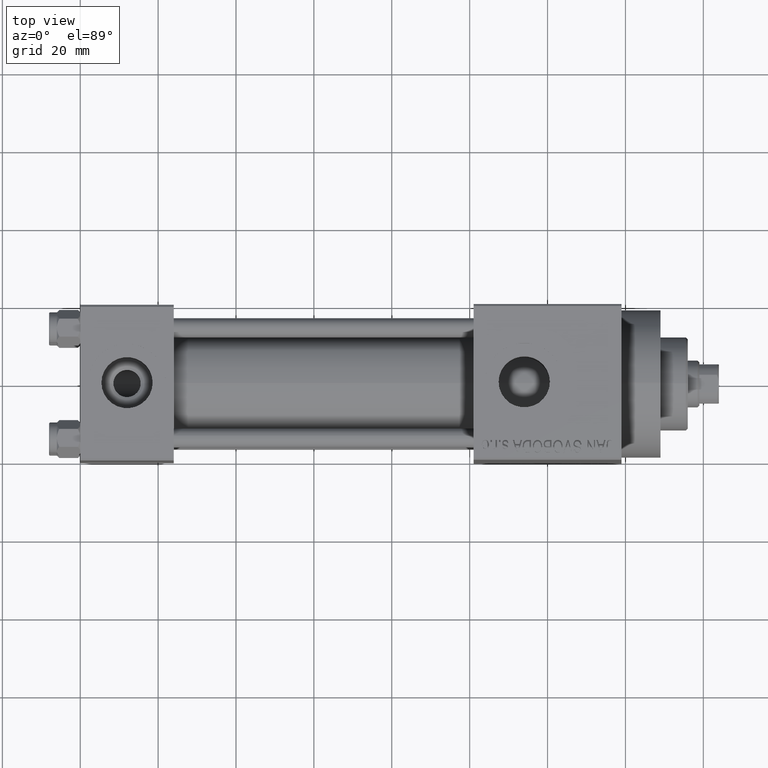
[diagram: clean part render]
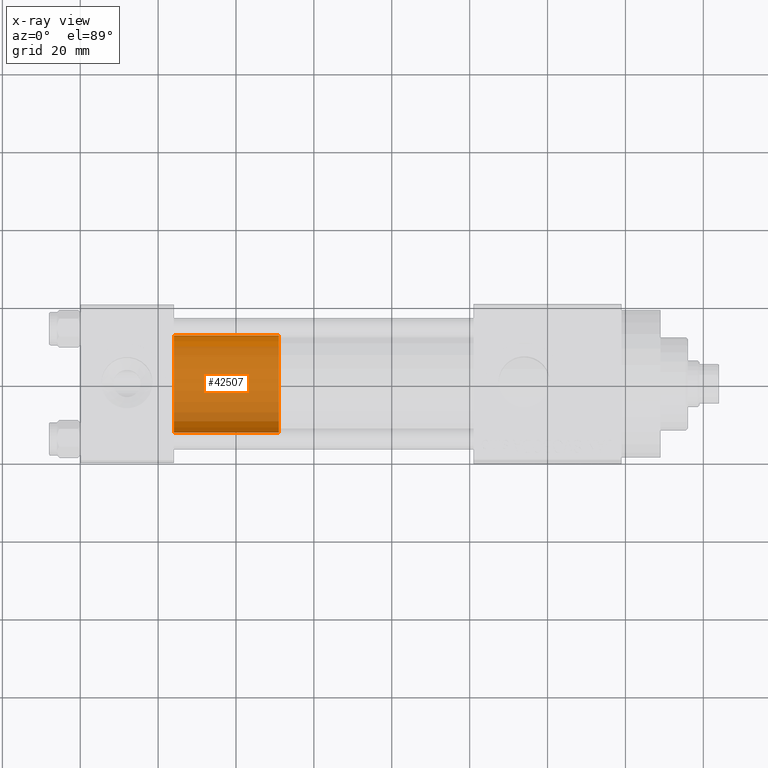
[diagram: x-ray — body ghosted, one internal face saturated and labeled with its STEP entity id]
A machine part, top view, then the same camera in x-ray: the body is ghosted and one INTERNAL B-rep face — a face not visible from any outside direction — is saturated and labeled: STEP entity #42507.
In plain terms, the highlighted cylindrical surface (partial cylindrical patch) has radius 12.5 mm, axis along (-1, 0, 0).
Its self-contained STEP definition (entity closure, byte-faithful):
#864 = ORIENTED_EDGE ( 'NONE', *, *, #15310, .T. ) ;
#1474 = CARTESIAN_POINT ( 'NONE',  ( -12.50000000000000000, 0.000000000000000000, 27.00000000000000000 ) ) ;
#3005 = CARTESIAN_POINT ( 'NONE',  ( -12.50000000000000000, 0.000000000000000000, 0.000000000000000000 ) ) ;
#3687 = CARTESIAN_POINT ( 'NONE',  ( -12.50000000000000000, 0.000000000000000000, 27.00000000000000000 ) ) ;
#7071 = CARTESIAN_POINT ( 'NONE',  ( 0.000000000000000000, 0.000000000000000000, 0.000000000000000000 ) ) ;
#8733 = CARTESIAN_POINT ( 'NONE',  ( 12.50000000000000000, 1.530808498934191521E-15, 0.000000000000000000 ) ) ;
#11321 = DIRECTION ( 'NONE',  ( 0.000000000000000000, 0.000000000000000000, 1.000000000000000000 ) ) ;
#12578 = AXIS2_PLACEMENT_3D ( 'NONE', #26770, #34158, #19388 ) ;
#13195 = CYLINDRICAL_SURFACE ( 'NONE', #12578, 12.50000000000000000 ) ;
#14646 = DIRECTION ( 'NONE',  ( -0.000000000000000000, -0.000000000000000000, -1.000000000000000000 ) ) ;
#15310 = EDGE_CURVE ( 'NONE', #19749, #43772, #32842, .T. ) ;
#16007 = VECTOR ( 'NONE', #14646, 1000.000000000000000 ) ;
#16782 = ORIENTED_EDGE ( 'NONE', *, *, #25590, .F. ) ;
#17288 = VECTOR ( 'NONE', #25928, 1000.000000000000000 ) ;
#19388 = DIRECTION ( 'NONE',  ( -1.000000000000000000, 0.000000000000000000, 0.000000000000000000 ) ) ;
#19749 = VERTEX_POINT ( 'NONE', #21381 ) ;
#21381 = CARTESIAN_POINT ( 'NONE',  ( 12.50000000000000000, 1.530808498934191521E-15, 27.00000000000000000 ) ) ;
#22034 = EDGE_CURVE ( 'NONE', #43772, #23474, #27252, .T. ) ;
#22864 = CIRCLE ( 'NONE', #42640, 12.50000000000000000 ) ;
#23474 = VERTEX_POINT ( 'NONE', #3005 ) ;
#25590 = EDGE_CURVE ( 'NONE', #30118, #23474, #36315, .T. ) ;
#25928 = DIRECTION ( 'NONE',  ( -0.000000000000000000, -0.000000000000000000, -1.000000000000000000 ) ) ;
#26634 = EDGE_CURVE ( 'NONE', #19749, #30118, #22864, .T. ) ;
#26770 = CARTESIAN_POINT ( 'NONE',  ( 0.000000000000000000, 0.000000000000000000, 27.00000000000000000 ) ) ;
#27252 = CIRCLE ( 'NONE', #33336, 12.50000000000000000 ) ;
#28039 = DIRECTION ( 'NONE',  ( 0.000000000000000000, 0.000000000000000000, 1.000000000000000000 ) ) ;
#30118 = VERTEX_POINT ( 'NONE', #1474 ) ;
#31280 = FACE_OUTER_BOUND ( 'NONE', #42301, .T. ) ;
#32842 = LINE ( 'NONE', #43316, #17288 ) ;
#33336 = AXIS2_PLACEMENT_3D ( 'NONE', #7071, #28039, #35421 ) ;
#34158 = DIRECTION ( 'NONE',  ( -0.000000000000000000, -0.000000000000000000, -1.000000000000000000 ) ) ;
#35421 = DIRECTION ( 'NONE',  ( 1.000000000000000000, 0.000000000000000000, 0.000000000000000000 ) ) ;
#36315 = LINE ( 'NONE', #3687, #16007 ) ;
#40377 = DIRECTION ( 'NONE',  ( 1.000000000000000000, 0.000000000000000000, 0.000000000000000000 ) ) ;
#41781 = ORIENTED_EDGE ( 'NONE', *, *, #22034, .T. ) ;
#42301 = EDGE_LOOP ( 'NONE', ( #46995, #864, #41781, #16782 ) ) ;
#42507 = ADVANCED_FACE ( 'NONE', ( #31280 ), #13195, .T. ) ;
#42640 = AXIS2_PLACEMENT_3D ( 'NONE', #43952, #11321, #40377 ) ;
#43316 = CARTESIAN_POINT ( 'NONE',  ( 12.50000000000000000, 1.530808498934191521E-15, 27.00000000000000000 ) ) ;
#43772 = VERTEX_POINT ( 'NONE', #8733 ) ;
#43952 = CARTESIAN_POINT ( 'NONE',  ( 0.000000000000000000, 0.000000000000000000, 27.00000000000000000 ) ) ;
#46995 = ORIENTED_EDGE ( 'NONE', *, *, #26634, .F. ) ;